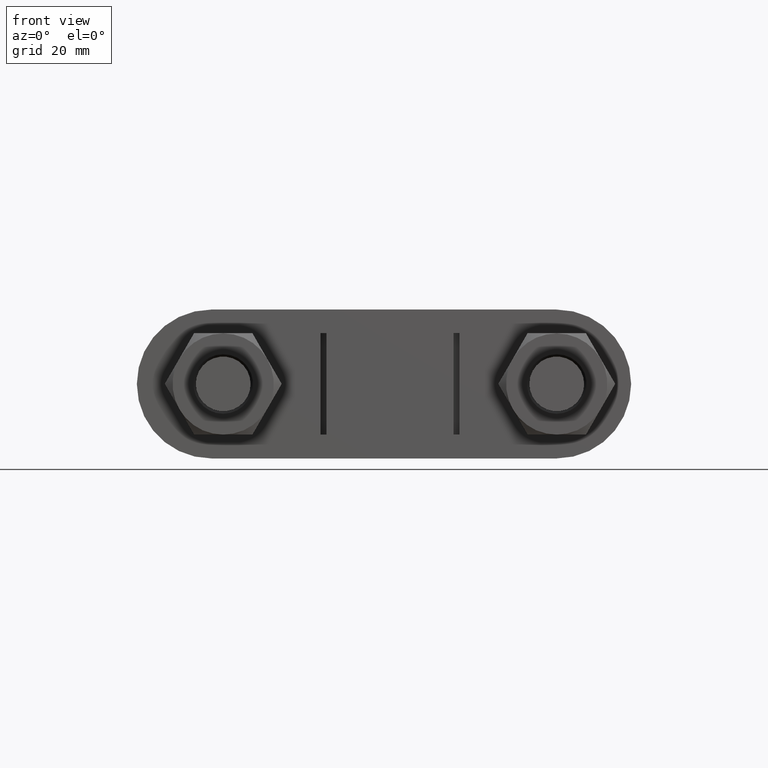
[diagram: clean part render]
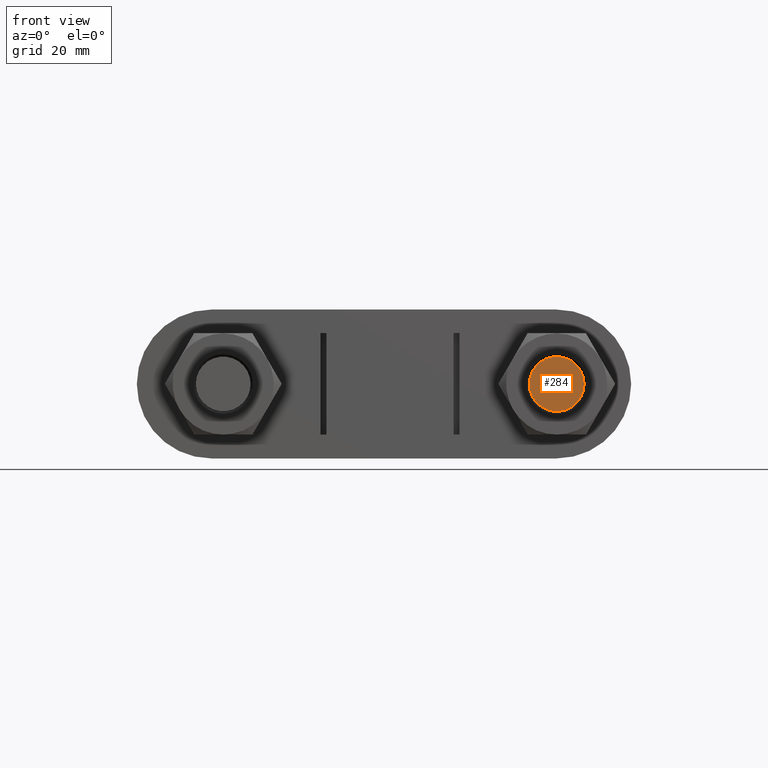
[diagram: same view with one face highlighted and labeled with its STEP entity id]
A machine part, front view. The second image highlights one B-rep face of the part: STEP entity #284.
In plain terms, the highlighted planar face has unit normal (-0, -1, -0).
Its self-contained STEP definition (entity closure, byte-faithful):
#284 = ADVANCED_FACE( '', ( #424 ), #425, .T. );
#424 = FACE_OUTER_BOUND( '', #1506, .T. );
#425 = PLANE( '', #1507 );
#1506 = EDGE_LOOP( '', ( #1848 ) );
#1507 = AXIS2_PLACEMENT_3D( '', #1849, #1850, #1851 );
#1848 = ORIENTED_EDGE( '', *, *, #2590, .T. );
#1849 = CARTESIAN_POINT( '', ( 28.0000000000000, -6.85779558140531E-015, -1.83690953073359E-017 ) );
#1850 = DIRECTION( '', ( -2.44921270764475E-016, -1.00000000000000, -6.12303176911190E-017 ) );
#1851 = DIRECTION( '', ( -7.49830360911071E-033, -6.12303176911190E-017, 1.00000000000000 ) );
#2590 = EDGE_CURVE( '', #2857, #2857, #2858, .T. );
#2857 = VERTEX_POINT( '', #3498 );
#2858 = CIRCLE( '', #3499, 4.60000000000000 );
#3498 = CARTESIAN_POINT( '', ( 32.6000000000000, -7.98443342692190E-015, -1.83690953073359E-017 ) );
#3499 = AXIS2_PLACEMENT_3D( '', #4125, #4126, #4127 );
#4125 = CARTESIAN_POINT( '', ( 28.0000000000000, -6.85779558140531E-015, -1.83690953073359E-017 ) );
#4126 = DIRECTION( '', ( -2.44921270764475E-016, -1.00000000000000, -6.12303176911188E-017 ) );
#4127 = DIRECTION( '', ( 1.00000000000000, -2.44921270764475E-016, -7.49830360911068E-033 ) );